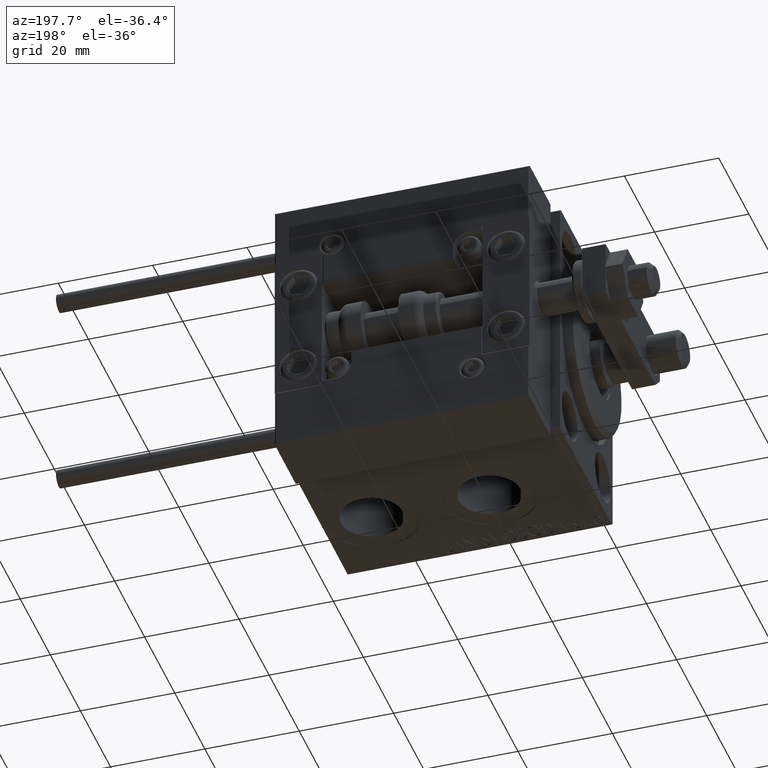
[diagram: clean part render]
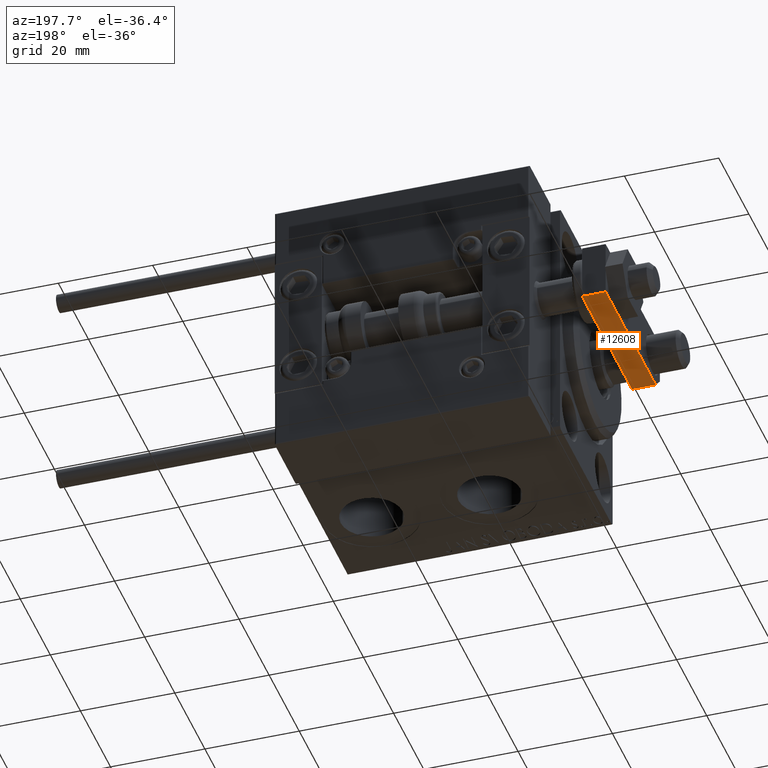
[diagram: same view with one face highlighted and labeled with its STEP entity id]
A machine part, auxiliary view. The second image highlights one B-rep face of the part: STEP entity #12608.
In plain terms, the highlighted planar face has unit normal (0, -0, 1).
Its self-contained STEP definition (entity closure, byte-faithful):
#1012 = CARTESIAN_POINT ( 'NONE',  ( -5.999999999999991118, 36.00000000000000000, 5.000000000000000000 ) ) ;
#1485 = DIRECTION ( 'NONE',  ( 0.000000000000000000, 0.000000000000000000, 1.000000000000000000 ) ) ;
#1499 = ORIENTED_EDGE ( 'NONE', *, *, #35233, .F. ) ;
#2410 = DIRECTION ( 'NONE',  ( -1.204669080539449344E-16, -1.000000000000000000, 0.000000000000000000 ) ) ;
#2519 = ORIENTED_EDGE ( 'NONE', *, *, #17785, .T. ) ;
#6107 = LINE ( 'NONE', #21020, #44801 ) ;
#7742 = DIRECTION ( 'NONE',  ( 1.204669080539449344E-16, 1.000000000000000000, 0.000000000000000000 ) ) ;
#9791 = VERTEX_POINT ( 'NONE', #50030 ) ;
#10783 = CARTESIAN_POINT ( 'NONE',  ( -5.999999999999991118, 36.00000000000000000, 0.000000000000000000 ) ) ;
#11349 = CARTESIAN_POINT ( 'NONE',  ( -5.999999999999991118, 36.00000000000000000, 5.000000000000000000 ) ) ;
#12608 = ADVANCED_FACE ( 'NONE', ( #42718 ), #14971, .F. ) ;
#13079 = DIRECTION ( 'NONE',  ( -0.000000000000000000, -0.000000000000000000, -1.000000000000000000 ) ) ;
#13618 = EDGE_LOOP ( 'NONE', ( #29940, #2519, #1499, #13767 ) ) ;
#13767 = ORIENTED_EDGE ( 'NONE', *, *, #20085, .T. ) ;
#14971 = PLANE ( 'NONE',  #36545 ) ;
#17228 = VECTOR ( 'NONE', #2410, 1000.000000000000000 ) ;
#17563 = VERTEX_POINT ( 'NONE', #10783 ) ;
#17785 = EDGE_CURVE ( 'NONE', #39042, #9791, #6107, .T. ) ;
#20085 = EDGE_CURVE ( 'NONE', #34443, #17563, #35962, .T. ) ;
#20522 = CARTESIAN_POINT ( 'NONE',  ( -5.999999999999991118, 36.00000000000000000, 5.000000000000000000 ) ) ;
#21020 = CARTESIAN_POINT ( 'NONE',  ( -5.999999999999995559, 2.800000000000010925, 5.000000000000000000 ) ) ;
#21564 = LINE ( 'NONE', #1012, #23635 ) ;
#21933 = CARTESIAN_POINT ( 'NONE',  ( -5.999999999999991118, 36.00000000000000000, 0.000000000000000000 ) ) ;
#22689 = VECTOR ( 'NONE', #13079, 1000.000000000000000 ) ;
#23635 = VECTOR ( 'NONE', #40368, 1000.000000000000000 ) ;
#27527 = DIRECTION ( 'NONE',  ( 1.000000000000000000, -1.204669080539449344E-16, 0.000000000000000000 ) ) ;
#29940 = ORIENTED_EDGE ( 'NONE', *, *, #30663, .T. ) ;
#30663 = EDGE_CURVE ( 'NONE', #17563, #39042, #37391, .T. ) ;
#34346 = CARTESIAN_POINT ( 'NONE',  ( -5.999999999999991118, 36.00000000000000000, 5.000000000000000000 ) ) ;
#34443 = VERTEX_POINT ( 'NONE', #34346 ) ;
#35233 = EDGE_CURVE ( 'NONE', #34443, #9791, #21564, .T. ) ;
#35962 = LINE ( 'NONE', #20522, #22689 ) ;
#36545 = AXIS2_PLACEMENT_3D ( 'NONE', #11349, #27527, #7742 ) ;
#37391 = LINE ( 'NONE', #21933, #17228 ) ;
#39042 = VERTEX_POINT ( 'NONE', #45176 ) ;
#40368 = DIRECTION ( 'NONE',  ( -1.204669080539449344E-16, -1.000000000000000000, 0.000000000000000000 ) ) ;
#42718 = FACE_OUTER_BOUND ( 'NONE', #13618, .T. ) ;
#44801 = VECTOR ( 'NONE', #1485, 1000.000000000000000 ) ;
#45176 = CARTESIAN_POINT ( 'NONE',  ( -5.999999999999995559, 2.800000000000010925, 0.000000000000000000 ) ) ;
#50030 = CARTESIAN_POINT ( 'NONE',  ( -5.999999999999995559, 2.800000000000010925, 5.000000000000000000 ) ) ;